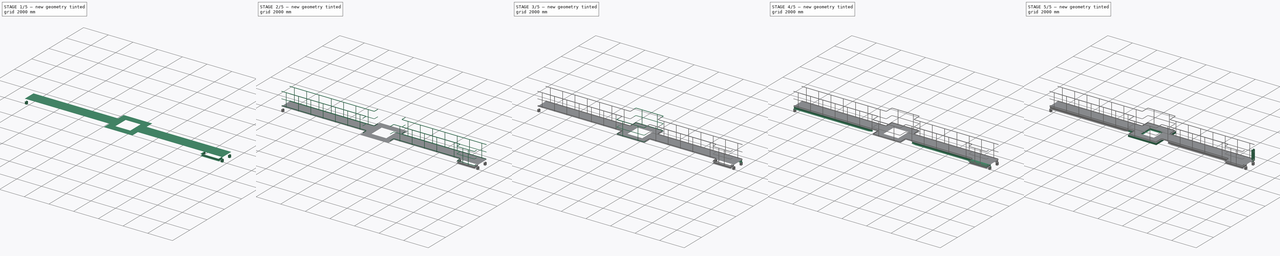
[diagram: build sequence overview — one tinted view per stage of 5, left to right]
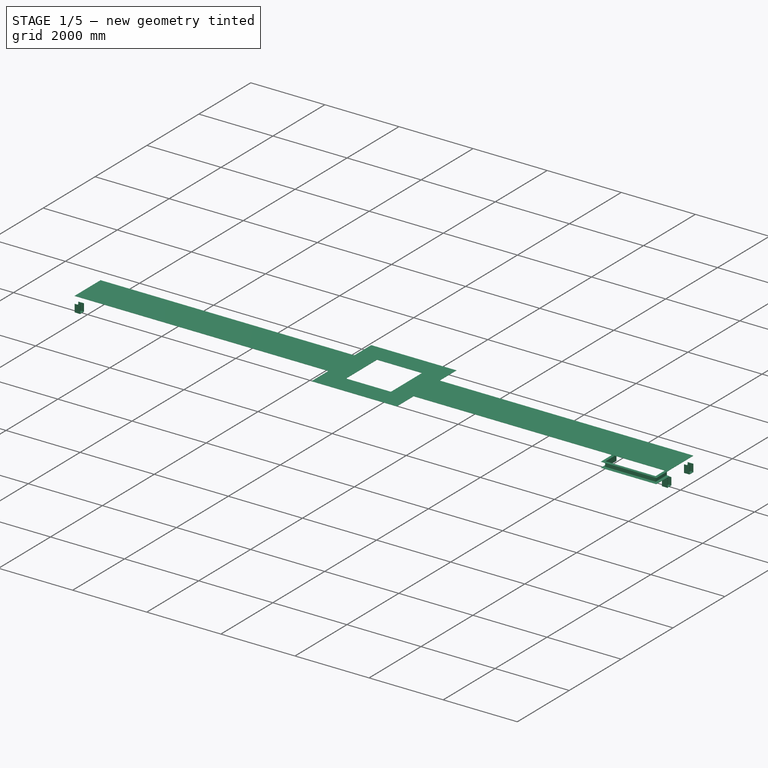
[diagram: stage 1 of 5 — iso view after this stage's code; geometry added in this stage tinted green]
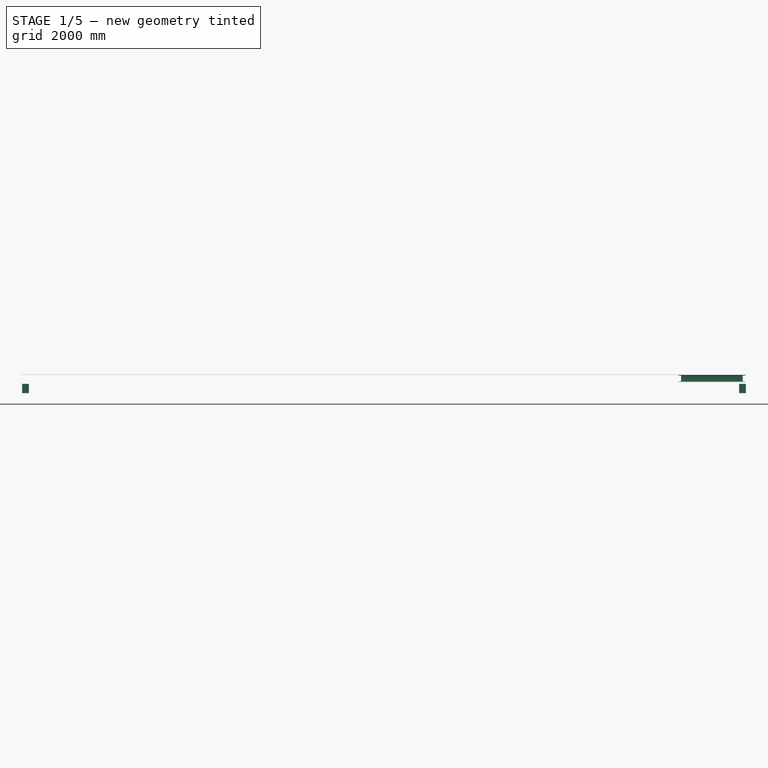
[diagram: stage 1 of 5 — front view after this stage's code; geometry added in this stage tinted green]
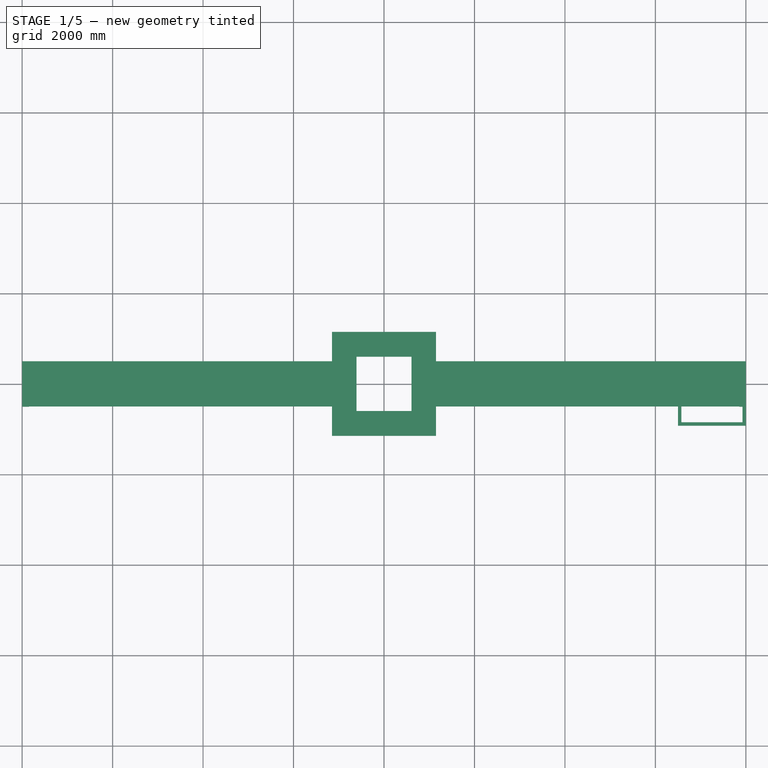
[diagram: stage 1 of 5 — top view after this stage's code; geometry added in this stage tinted green]
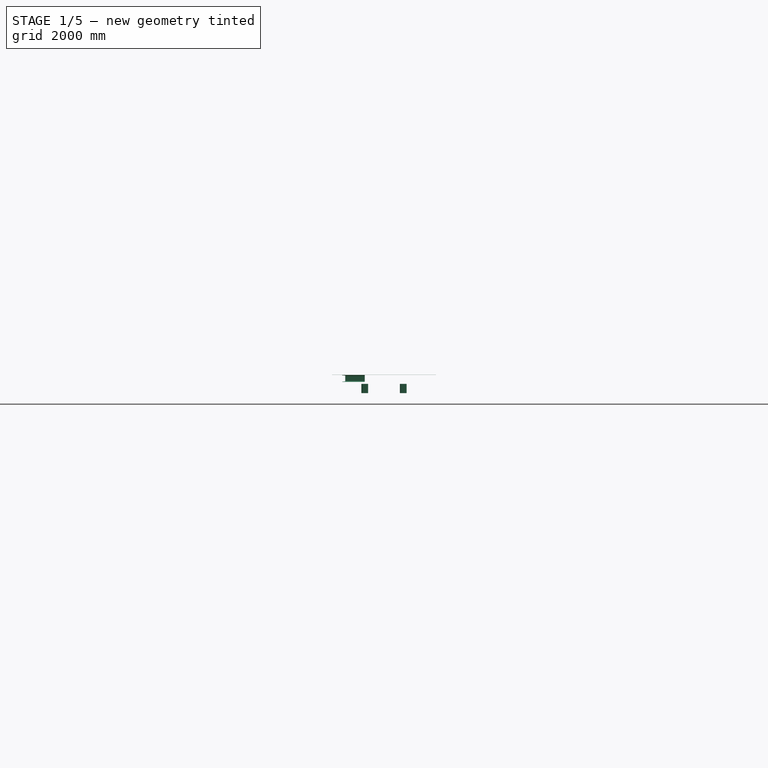
[diagram: stage 1 of 5 — right view after this stage's code; geometry added in this stage tinted green]
FCSTD DOCUMENT  (FreeCAD 1.0R39319 (Git))
Label: bridge_P
License: All rights reserved
LicenseURL: https://en.wikipedia.org/wiki/All_rights_reserved
objects: Part::FeaturePython×25, Sketcher::SketchObject×5, Part::Extrusion×4, Part::Sweep×3, Part::MultiFuse×3, App::Part×3, Part::Compound×2, Part::Loft×1, Part::Mirroring×1, Spreadsheet::Sheet×1, Part::Feature×1
note: 49 computed .brp shape members not serialized (recipe doc carries the construction recipe); baked Part::Feature solids carry a one-line shape summary decoded from their .brp

FEATURE [Sketcher::SketchObject] Sketch002
  ArcFitTolerance = 0
  ExternalGeometry = -> [Sketch001]
  FullyConstrained = false
  MakeInternals = false
  MapMode = 5
  Placement = pos=(0,0,1.342e-13) rot=(0,0,1;0rad)
  expr: Constraints[28] = Spreadsheet.dia / 2 + 250
  sketch-geometry (12):
    g0: LineSegment StartX=0 StartY=1150 StartZ=0 EndX=1150 EndY=1150 EndZ=0
    g1: LineSegment StartX=1150 StartY=1150 StartZ=0 EndX=1150 EndY=500 EndZ=0
    g2: LineSegment StartX=1150 StartY=500 StartZ=0 EndX=8000 EndY=500 EndZ=0
    g3: LineSegment StartX=8000 StartY=-500 StartZ=0 EndX=1150 EndY=-500 EndZ=0
    g4: LineSegment StartX=1150 StartY=-500 StartZ=0 EndX=1150 EndY=-1150 EndZ=0
    g5: LineSegment StartX=1150 StartY=-1150 StartZ=0 EndX=0 EndY=-1150 EndZ=0
    g6: LineSegment StartX=0 StartY=-1150 StartZ=0 EndX=0 EndY=-600 EndZ=0
    g7: LineSegment StartX=0 StartY=600 StartZ=0 EndX=606.738 EndY=600 EndZ=0
    g8: LineSegment StartX=606.738 StartY=600 StartZ=0 EndX=606.738 EndY=-600 EndZ=0
    g9: LineSegment StartX=606.738 StartY=-600 StartZ=0 EndX=0 EndY=-600 EndZ=0
    g10: LineSegment StartX=0 StartY=600 StartZ=0 EndX=0 EndY=1150 EndZ=0
    g11: LineSegment StartX=8000 StartY=-500 StartZ=0 EndX=8000 EndY=500 EndZ=0
  constraints (31):
    c: Horizontal(g0)
    c: Coincident(g0,g1)
    c: Vertical(g1)
    c: Coincident(g1,g2)
    c: Horizontal(g2)
    c: Horizontal(g3)
    c: Coincident(g3,g4)
    c: Coincident(g4,g5)
    c: PointOnObject(g5,g-2)
    c: Horizontal(g5)
    c: Coincident(g5,g6)
    c: Coincident(g10,g0)
    c: Vertical(g6)
    c: Coincident(g-3,g0)
    c: Coincident(g4,g-3)
    c: Vertical(g4)
    c: Horizontal(g7)
    c: Coincident(g7,g8)
    c: Vertical(g8)
    c: Coincident(g8,g9)
    c: Horizontal(g9)
    c: Coincident(g6,g9)
    c: Coincident(g10,g7)
    c: Vertical(g10)
    c: Coincident(g11,g3)
    c: Coincident(g11,g2)
    c: DistanceY(g11,g11) = 1000
    c: Symmetric(g3,g2,g-1)
    c: DistanceX(g-1,g3) = 8000
    c: Symmetric(g6,g7,g-1)
    c: DistanceY(g8,g8) = 1200
FEATURE [Part::Extrusion] Extrude001
  Base = -> Sketch002
  Dir = (0,0,1)
  DirMode = 2
  FaceMakerClass = Part::FaceMakerBullseye
  FaceMakerMode = 3
  LengthFwd = 4.5
  LengthRev = 0
  Solid = true
  Symmetric = false
FEATURE [Part::FeaturePython] BasePlate  # WARN: FeaturePython — macro-defined, semantics opaque (R4)
  B = 150
  D = 20
  H = 150
  b1 = 30
  h1 = 45
  sface = 0
FEATURE [Part::Extrusion] Extrude002
  Base = -> BasePlate
  Dir = (0,0,1)
  DirMode = 2
  FaceMakerClass = Part::FaceMakerBullseye
  FaceMakerMode = 3
  LengthFwd = 10
  LengthRev = 0
  Solid = true
  Symmetric = false
FEATURE [Part::FeaturePython] H_Shape  # WARN: FeaturePython — macro-defined, semantics opaque (R4)
  B = 150
  H = 150
  L = 206
  Placement = pos=(0,0,0) rot=(0.57735,0.57735,0.57735;2.0944rad)
  Solid = true
  g0 = 7.85
  mass = 6.49082
  size = 2
  standard = SS_Wide
  expr: L = Spreadsheet.hight - 194
FEATURE [Part::MultiFuse] Fusion007  label="PostH"
  Placement = pos=(-7925,-425,-400) rot=(0,0,1;1.5708rad)
  Shapes = -> [Extrude002,H_Shape]
  expr: .Placement.Base.x = -Spreadsheet.dia / 2 - 175
  expr: .Placement.Base.z = -Spreadsheet.hight
FEATURE [App::Part] Part003  label="handrail"
  Group = -> [Channel,Channel001,Channel002,Corner,Channel003,Corner001,Corner002,Corner003,Corner004]
  Origin = -> Origin003
FEATURE [Part::Sweep] Sweep002
  Frenet = false
  Sections = -> [ChannelSteel001]
  Solid = true
  Spine = -> Sketch003 [Edge3,Edge2,Edge1]
  Transition = 1
FEATURE [Part::FeaturePython] Array003  # Draft array (typed FeaturePython)
  AlwaysSyncPlacement = false
  Angle = 360
  ArrayType = 0
  Axis = (0,0,1)
  Base = -> Fusion007
  Center = (0,0,0)
  Count = 4
  ExpandArray = false
  Fuse = true
  IntervalAxis = (0,0,0)
  IntervalX = (15850,0,0)
  IntervalY = (0,850,0)
  IntervalZ = (0,0,100)
  NumberCircles = 3
  NumberPolar = 5
  NumberX = 2
  NumberY = 2
  NumberZ = 1
  PlacementList = 4 placements: [(-7925,-425,-400),(-7925,425,-400),(7925,-425,-400),(7925,425,-400)]
  RadialDistance = 50
  ScaleList = (4) [(1,1,1),(1,1,1),(1,1,1),(1,1,1)]
  Symmetry = 1
  TangentialDistance = 25
  expr: .IntervalX.x = Spreadsheet.dia + 350
FEATURE [Part::FeaturePython] Array004  # Draft array (typed FeaturePython)
  AlwaysSyncPlacement = false
  Angle = 360
  ArrayType = 1
  Axis = (0,0,1)
  Base = -> Extrude001
  Center = (0,0,750)
  Count = 2
  ExpandArray = false
  Fuse = true
  IntervalAxis = (0,0,0)
  IntervalX = (50,0,0)
  IntervalY = (0,50,0)
  IntervalZ = (0,0,50)
  NumberCircles = 3
  NumberPolar = 2
  NumberX = 2
  NumberY = 2
  NumberZ = 1
  PlacementList = 2 placements: [(0,0,0),(0,0,0)]
  RadialDistance = 50
  ScaleList = (2) [(1,1,1),(1,1,1)]
  Symmetry = 1
  TangentialDistance = 25
FEATURE [App::Part] Part  label="bridge001"
  Group = -> [Sketch002,HShapeSteel,HShapeSteel001,ChannelSteel,AngleSteel,Mirror,Compound,Compound001,Array,Extrude,Extrude001,HShapeSteel002,Clone,Clone001,HShapeSteel003,HShapeSteel004,Loft,Sweep001,Sweep,Fusion002,Fusion,Sketch,Sketch001,Extrude002,BasePlate,H_Shape,Fusion007,Sketch003,ChannelSteel001,Sweep002,Sketch004,Extrude003,Array001,Array003,Array004]
  Origin = -> Origin
FEATURE [App::Part] Part002  label="bridge"
  Group = -> [Part,Spreadsheet,Part__Feature,Part003]
  Origin = -> Origin002
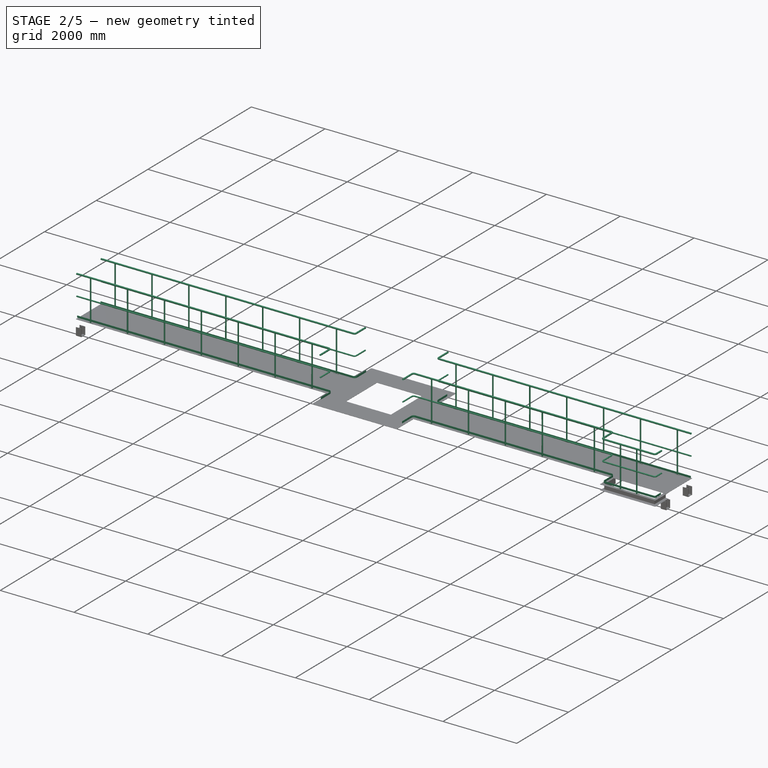
[diagram: stage 2 of 5 — iso view after this stage's code; geometry added in this stage tinted green]
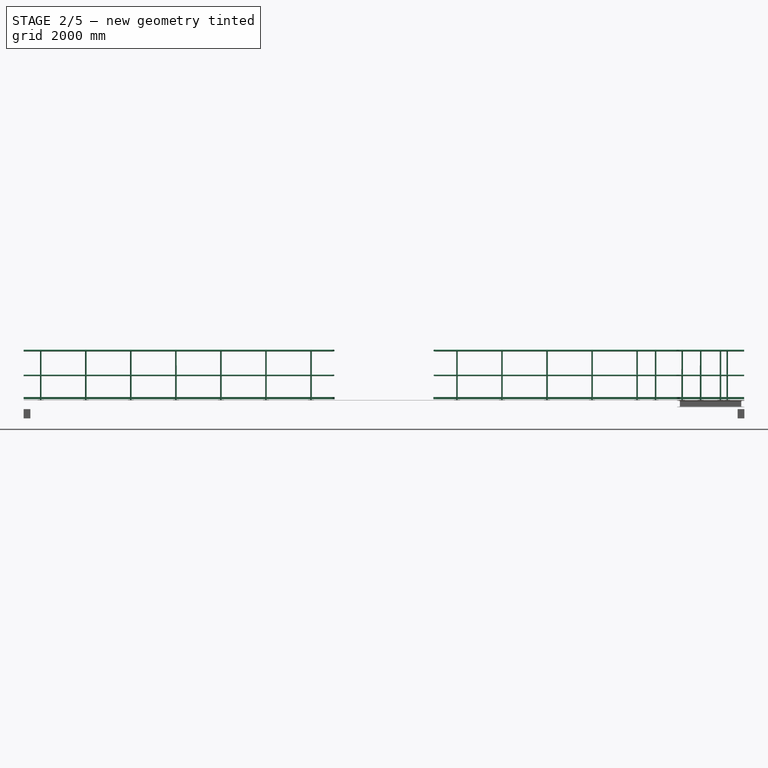
[diagram: stage 2 of 5 — front view after this stage's code; geometry added in this stage tinted green]
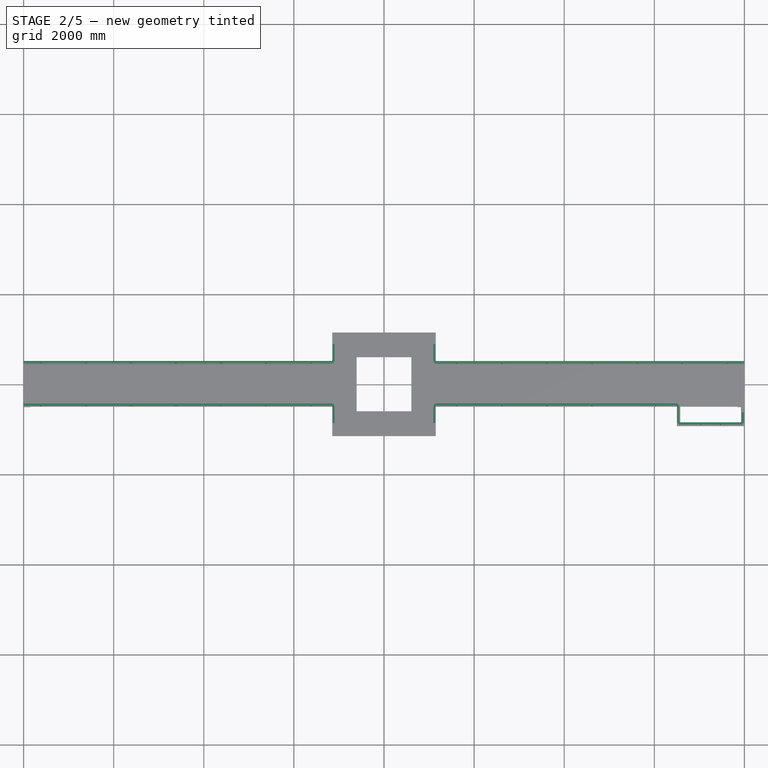
[diagram: stage 2 of 5 — top view after this stage's code; geometry added in this stage tinted green]
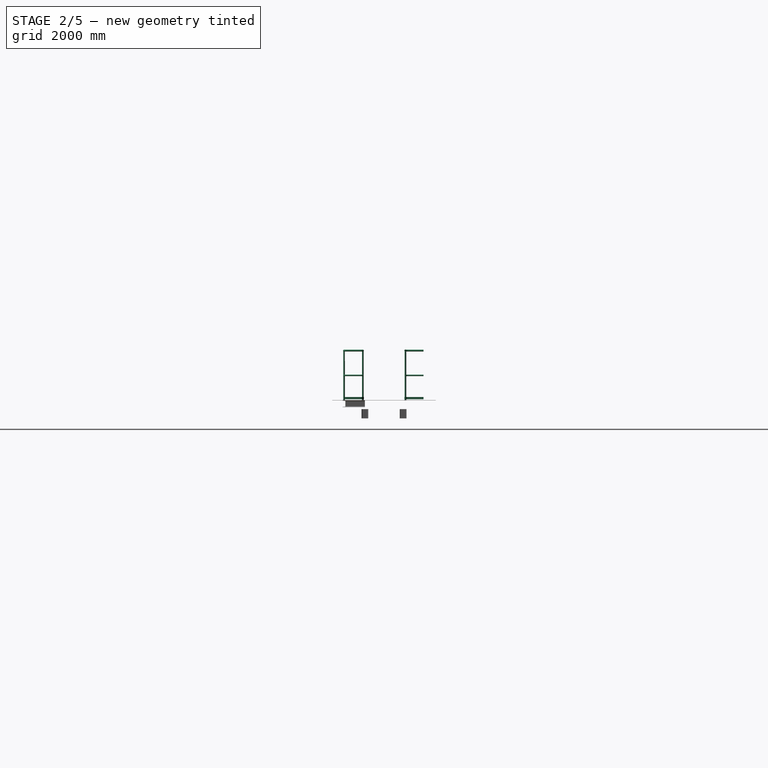
[diagram: stage 2 of 5 — right view after this stage's code; geometry added in this stage tinted green]
FEATURE [Part::FeaturePython] Corner  # WARN: FeaturePython — macro-defined, semantics opaque (R4)
  Placement = pos=(1119.4,-870,5) rot=(0,0,-1;4.71239rad)
  Reverse = false
  g0 = 7.85
  h = 1100
  k = -90
  l1 = 400
  l2 = 4360
  mass = 50.436
  p = 1000
  spec = 0
  type = 2
  expr: l2 = Spreadsheet.dia / 2 - 3390
FEATURE [Part::FeaturePython] Channel003  # WARN: FeaturePython — macro-defined, semantics opaque (R4)
  Placement = pos=(7250,-886.772,5) rot=(0,0,1;0rad)
  Reverse = false
  g0 = 7.85
  h = 1100
  k = 90
  l1 = 720
  l2 = 245
  mass = 21.0928
  p = 1000
  spec = 0
  type = 6
  expr: .Placement.Base.x = Spreadsheet.dia / 2 - 500
FEATURE [Part::FeaturePython] Corner001  # WARN: FeaturePython — macro-defined, semantics opaque (R4)
  Placement = pos=(5480,-469.271,5) rot=(0,0,1;0rad)
  Reverse = false
  g0 = 7.85
  h = 1100
  k = -90
  l1 = 1050
  l2 = 165
  mass = 12.7366
  p = 1000
  spec = 0
  type = 2
  expr: .Placement.Base.x = Spreadsheet.dia / 2 - 2270
FEATURE [Part::FeaturePython] Corner002  # WARN: FeaturePython — macro-defined, semantics opaque (R4)
  Placement = pos=(1119.4,874.21,5) rot=(0,0,-1;1.5708rad)
  Reverse = true
  g0 = 7.85
  h = 1100
  k = 90
  l1 = 400
  l2 = 6875
  mass = 79.7206
  p = 1000
  spec = 0
  type = 2
  expr: l2 = Spreadsheet.dia / 2 - 875
FEATURE [Part::FeaturePython] Corner003  # WARN: FeaturePython — macro-defined, semantics opaque (R4)
  Placement = pos=(-1118.86,-871.912,5) rot=(0,0,-1;4.71239rad)
  Reverse = true
  g0 = 7.85
  h = 1100
  k = 90
  l1 = 400
  l2 = 6880
  mass = 79.7615
  p = 1000
  spec = 0
  type = 2
  expr: l2 = Spreadsheet.dia / 2 - 870
FEATURE [Part::FeaturePython] Corner004  # WARN: FeaturePython — macro-defined, semantics opaque (R4)
  Placement = pos=(-1120.15,876.348,5) rot=(0,0,-1;1.5708rad)
  Reverse = false
  g0 = 7.85
  h = 1100
  k = -90
  l1 = 400
  l2 = 6880
  mass = 79.7615
  p = 1000
  spec = 0
  type = 2
  expr: l2 = Spreadsheet.dia / 2 - 870
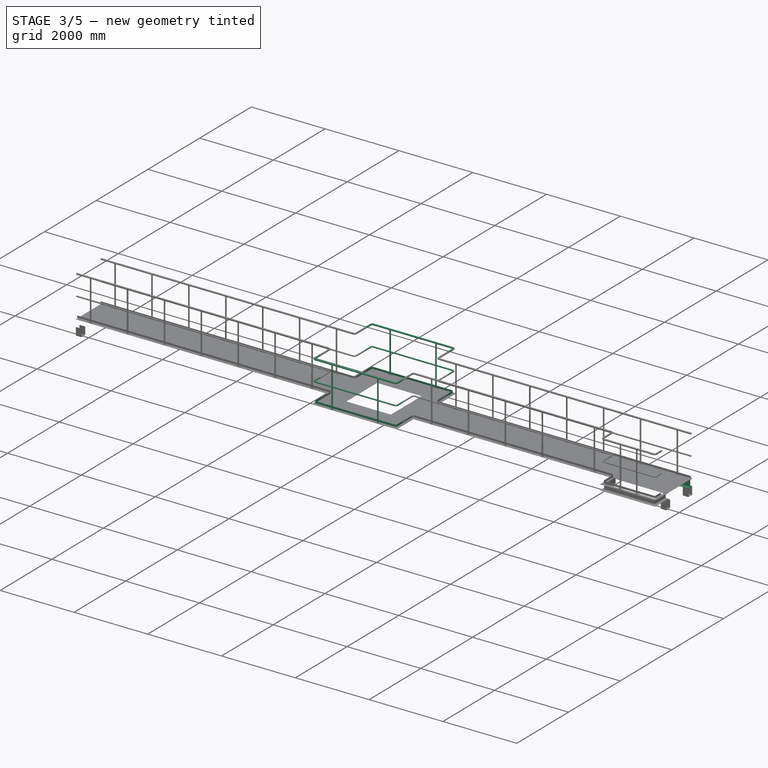
[diagram: stage 3 of 5 — iso view after this stage's code; geometry added in this stage tinted green]
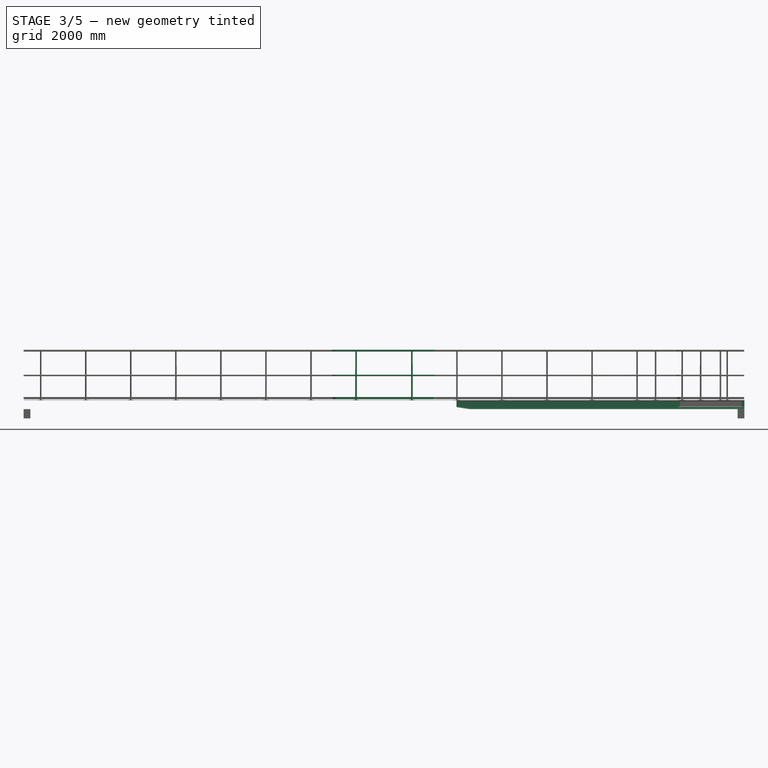
[diagram: stage 3 of 5 — front view after this stage's code; geometry added in this stage tinted green]
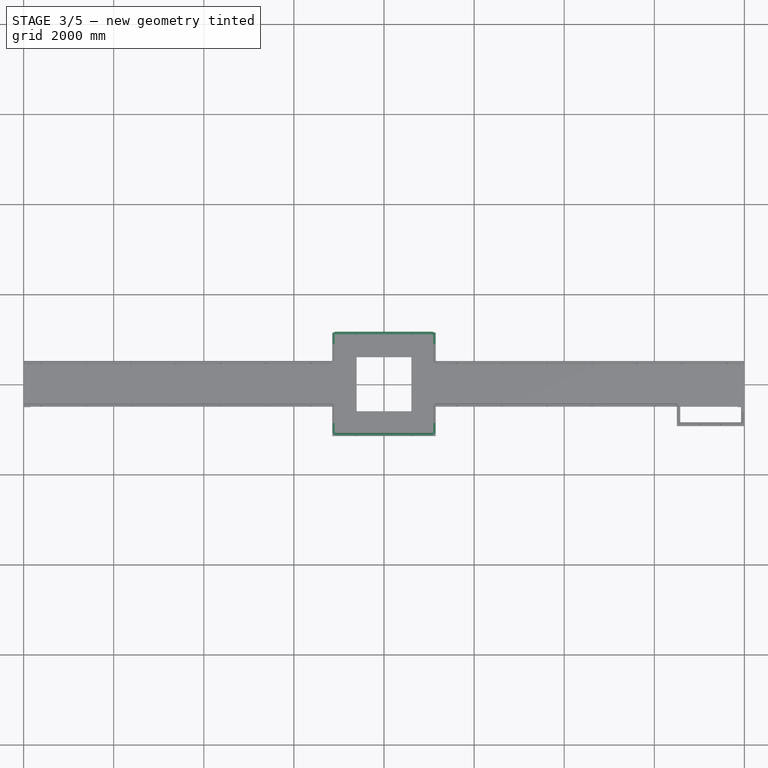
[diagram: stage 3 of 5 — top view after this stage's code; geometry added in this stage tinted green]
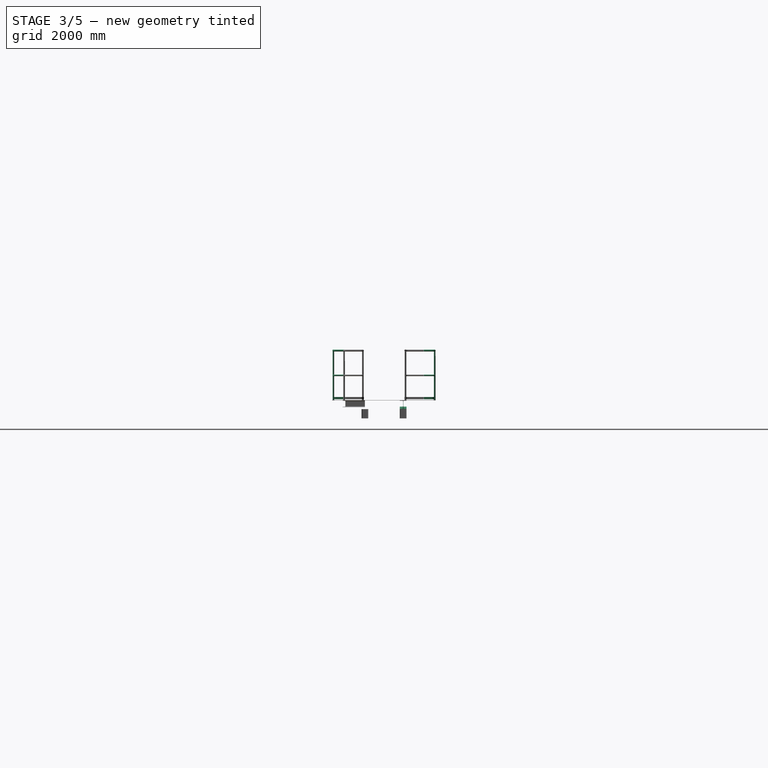
[diagram: stage 3 of 5 — right view after this stage's code; geometry added in this stage tinted green]
FEATURE [Part::FeaturePython] HShapeSteel002  label="HShapeSteel003"  # WARN: FeaturePython — macro-defined, semantics opaque (R4)
  B = 150
  H = 150
  L = 1000
  Placement = pos=(1607.98,-500,-150) rot=(0,0,1;1.5708rad)
  Solid = false
  g0 = 7.85
  mass = 0
  size = 2
  standard = SS_Wide
  t1 = 7
  t2 = 10
FEATURE [Part::FeaturePython] HShapeSteel003  label="HShapeSteel004"  # WARN: FeaturePython — macro-defined, semantics opaque (R4)
  B = 150
  H = 194
  L = 1000
  Placement = pos=(1900,-500,-194) rot=(0,0,1;1.5708rad)
  Solid = false
  g0 = 7.85
  mass = 0
  size = 1
  standard = SS_Medium
  t1 = 6
  t2 = 9
FEATURE [Part::Loft] Loft
  Closed = false
  MaxDegree = 5
  Ruled = false
  Sections = -> [HShapeSteel002,HShapeSteel003]
  Solid = true
FEATURE [Part::Extrusion] Extrude
  Base = -> HShapeSteel003
  Dir = (-1,-2e-16,0)
  DirMode = 2
  FaceMakerClass = Part::FaceMakerBullseye
  FaceMakerMode = 3
  LengthFwd = 6100
  LengthRev = 0
  Reversed = true
  Solid = true
  Symmetric = false
  expr: LengthFwd = Spreadsheet.L0
FEATURE [Part::MultiFuse] Fusion002
  Shapes = -> [Extrude,Loft]
FEATURE [Part::FeaturePython] Clone001  label="Fusion003"  # Draft clone (typed FeaturePython)
  AttacherType = Attacher::AttachEngine3D
  Fuse = false
  Objects = -> [Fusion002]
  Placement = pos=(-9.09e-13,850,6.6e-14) rot=(0,0,1;0rad)
  Scale = (1,1,1)
FEATURE [Part::Feature] Part__Feature  label="cover"
  shape: bbox 1150 x 1150 x 750 mm, 40 faces (baked)
FEATURE [Part::FeaturePython] Channel  # WARN: FeaturePython — macro-defined, semantics opaque (R4)
  Placement = pos=(0,-1123.5,5) rot=(0,0,1;0rad)
  Reverse = false
  g0 = 7.85
  h = 1100
  k = 90
  l1 = 1120
  l2 = 245
  mass = 27.6281
  p = 1000
  spec = 0
  type = 6
FEATURE [Part::FeaturePython] Channel001  # WARN: FeaturePython — macro-defined, semantics opaque (R4)
  Placement = pos=(0,1125,5) rot=(0,0,1;0rad)
  Reverse = true
  g0 = 7.85
  h = 1100
  k = -90
  l1 = 1120
  l2 = 245
  mass = 27.628
  p = 1000
  spec = 0
  type = 6
FEATURE [Part::FeaturePython] Channel002  # WARN: FeaturePython — macro-defined, semantics opaque (R4)
  Placement = pos=(0,1125,5) rot=(0,0,1;0rad)
  Reverse = true
  g0 = 7.85
  h = 1100
  k = -90
  l1 = 1120
  l2 = 245
  mass = 27.628
  p = 1000
  spec = 0
  type = 6
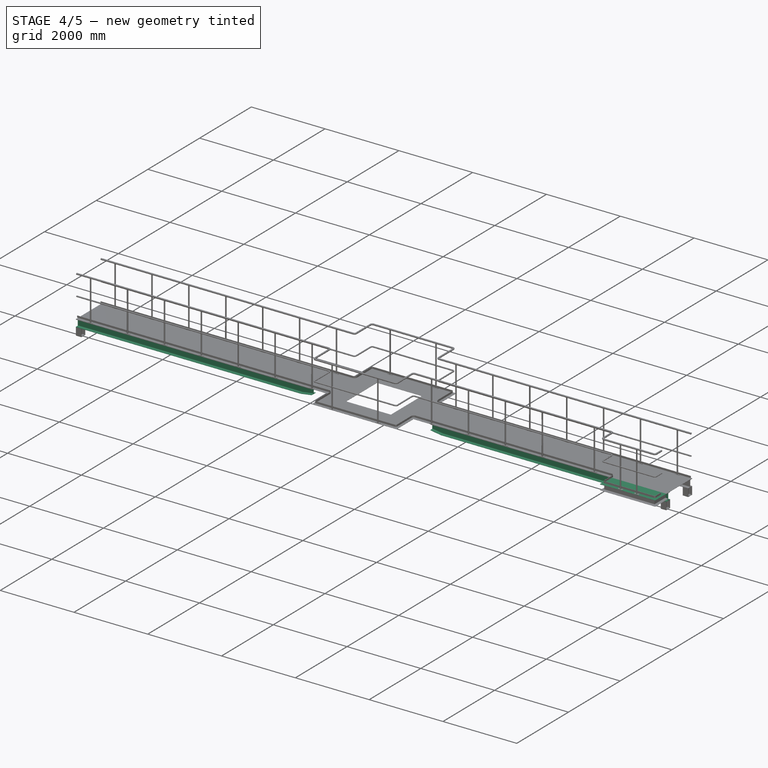
[diagram: stage 4 of 5 — iso view after this stage's code; geometry added in this stage tinted green]
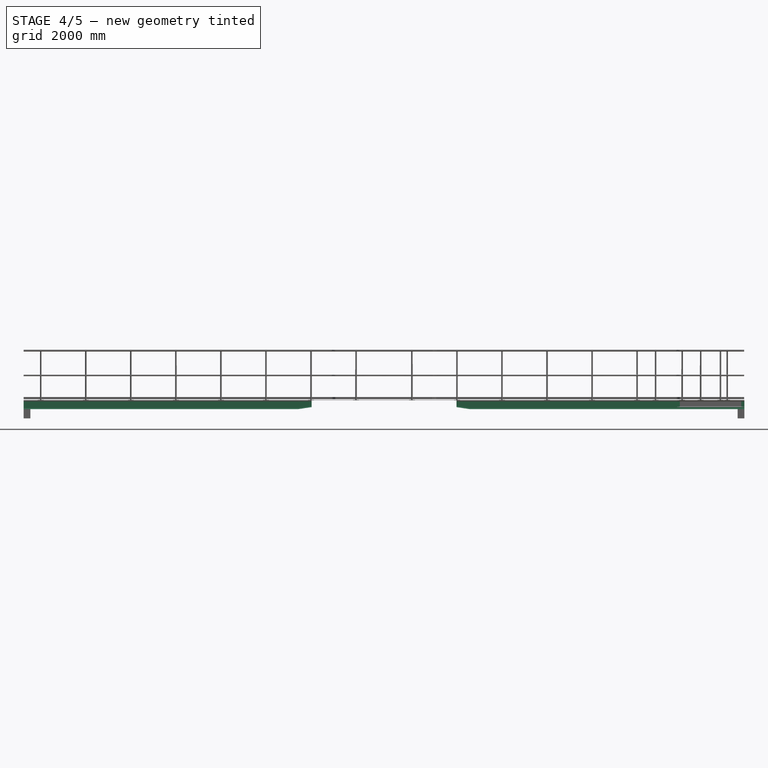
[diagram: stage 4 of 5 — front view after this stage's code; geometry added in this stage tinted green]
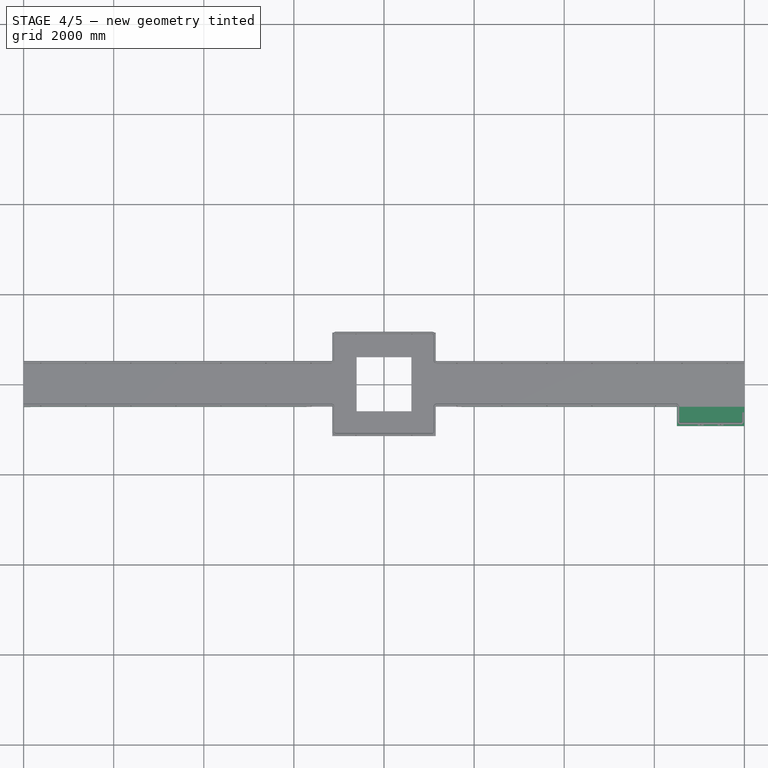
[diagram: stage 4 of 5 — top view after this stage's code; geometry added in this stage tinted green]
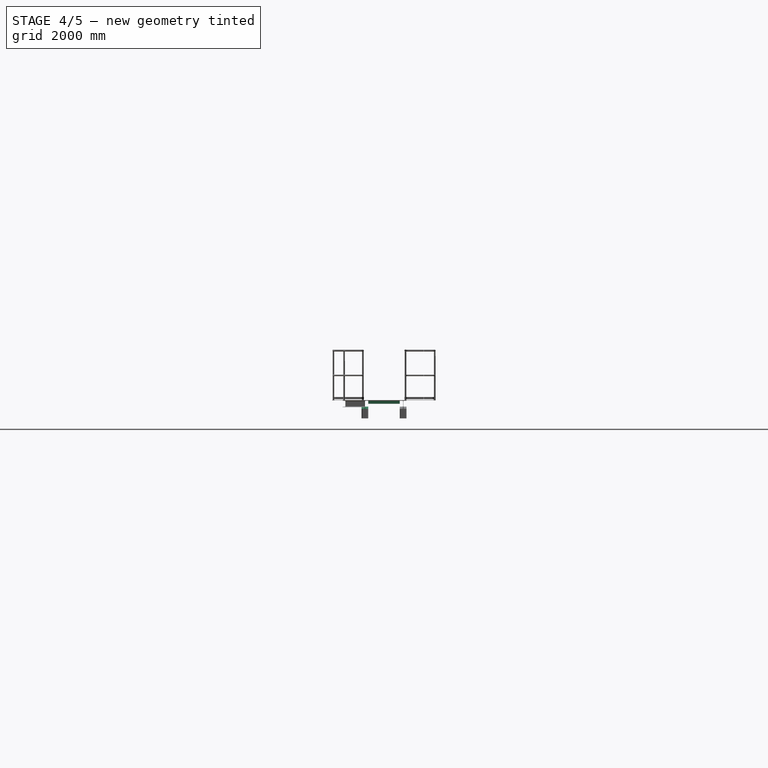
[diagram: stage 4 of 5 — right view after this stage's code; geometry added in this stage tinted green]
FEATURE [Part::FeaturePython] AngleSteel  # WARN: FeaturePython — macro-defined, semantics opaque (R4)
  A = 75
  B = 75
  L = 700
  Placement = pos=(1800,350,-37.5) rot=(1,0,0;1.5708rad)
  Solid = true
  g0 = 7.85
  mass = 4.79514
  size = 10
  standard = SS_Equal
  t = 6
FEATURE [Part::FeaturePython] Array  # Draft array (typed FeaturePython)
  AlwaysSyncPlacement = false
  Angle = 360
  ArrayType = 0
  Axis = (0,0,1)
  Base = -> AngleSteel
  Center = (0,0,0)
  Count = 9
  ExpandArray = false
  Fuse = false
  IntervalAxis = (0,0,0)
  IntervalX = (700,0,0)
  IntervalY = (0,100,0)
  IntervalZ = (0,0,100)
  NumberCircles = 3
  NumberPolar = 5
  NumberX = 9
  NumberY = 1
  NumberZ = 1
  PlacementList = 9 placements: arithmetic series from (1800,350,-37.5) step (700,0,0) to (7400,350,-37.5)
  RadialDistance = 50
  ScaleList = (9) [(1,1,1),(1,1,1),(1,1,1),(1,1,1),(1,1,1),(1,1,1),(1,1,1),(1,1,1),(1,1,1)]
  Symmetry = 1
  TangentialDistance = 25
  expr: NumberX = Spreadsheet.n
FEATURE [Part::Compound] Compound
  Links = -> [Fusion002,Clone001]
FEATURE [Part::Compound] Compound001
  Links = -> [Compound,Array]
FEATURE [Sketcher::SketchObject] Sketch003
  ArcFitTolerance = 0
  FullyConstrained = false
  MakeInternals = false
  MapMode = 5
  Placement = pos=(0,0,1.342e-13) rot=(0,0,1;0rad)
  expr: Constraints[6] = Spreadsheet.dia / 2 + 250
  sketch-geometry (3):
    g0: LineSegment StartX=8000 StartY=-425 StartZ=0 EndX=8000 EndY=-925 EndZ=0
    g1: LineSegment StartX=8000 StartY=-925 StartZ=0 EndX=6500 EndY=-925 EndZ=0
    g2: LineSegment StartX=6500 StartY=-925 StartZ=0 EndX=6500 EndY=-428 EndZ=0
  constraints (9):
    c: Vertical(g0)
    c: Coincident(g0,g1)
    c: Horizontal(g1)
    c: Coincident(g1,g2)
    c: Vertical(g2)
    c: DistanceX(g1,g1) = 1500
    c: DistanceX(g-1,g0) = 8000
    c: Distance(g0,g-1) = 425
    c: DistanceY(g0,g0) = 500
FEATURE [Part::FeaturePython] ChannelSteel001  # WARN: FeaturePython — macro-defined, semantics opaque (R4)
  B = 75
  H = 150
  L = 1000
  Placement = pos=(6575,-671.206,-150) rot=(0,0,1;3.14159rad)
  Solid = false
  g0 = 7.85
  mass = 0
  size = 3
  standard = SS
  t1 = 6.5
  t2 = 10
  expr: .Placement.Base.x = Spreadsheet.dia / 2 - 1175
FEATURE [Part::FeaturePython] Array001  # Draft array (typed FeaturePython)
  AlwaysSyncPlacement = false
  Angle = 360
  ArrayType = 1
  Axis = (0,0,1)
  Base = -> Compound001
  Center = (0,0,0)
  Count = 2
  ExpandArray = false
  Fuse = true
  IntervalAxis = (0,0,0)
  IntervalX = (50,0,0)
  IntervalY = (0,50,0)
  IntervalZ = (0,0,50)
  NumberCircles = 3
  NumberPolar = 2
  NumberX = 2
  NumberY = 2
  NumberZ = 1
  PlacementList = 2 placements: [(0,0,0),(0,0,0)]
  RadialDistance = 50
  ScaleList = (2) [(1,1,1),(1,1,1)]
  Symmetry = 1
  TangentialDistance = 25
FEATURE [Sketcher::SketchObject] Sketch004
  ArcFitTolerance = 0
  AttachmentSupport = -> [Sweep002]
  FullyConstrained = true
  MakeInternals = false
  MapMode = 5
  Placement = pos=(0,0,-1.133e-13) rot=(0,0,1;0rad)
  expr: Constraints[9] = Spreadsheet.dia / 2 + 250
  sketch-geometry (4):
    g0: LineSegment StartX=6500 StartY=-925 StartZ=0 EndX=8000 EndY=-925 EndZ=0
    g1: LineSegment StartX=8000 StartY=-500 StartZ=0 EndX=6500 EndY=-500 EndZ=0
    g2: LineSegment StartX=6500 StartY=-500 StartZ=0 EndX=6500 EndY=-925 EndZ=0
    g3: LineSegment StartX=8000 StartY=-925 StartZ=0 EndX=8000 EndY=-500 EndZ=0
  constraints (12):
    c: Coincident(g1,g2)
    c: Coincident(g2,g0)
    c: Horizontal(g0)
    c: Horizontal(g1)
    c: Vertical(g2)
    c: Coincident(g3,g0)
    c: Coincident(g3,g1)
    c: Vertical(g3)
    c: Distance(g1,g-1) = 500
    c: DistanceX(g-1,g0) = 8000
    c: DistanceX(g0,g0) = 1500
    c: DistanceY(g3,g3) = 425
FEATURE [Part::Extrusion] Extrude003
  Base = -> Sketch004
  Dir = (0,0,1)
  DirMode = 2
  FaceMakerClass = Part::FaceMakerBullseye
  FaceMakerMode = 3
  LengthFwd = 4.5
  LengthRev = 0
  Solid = true
  Symmetric = false
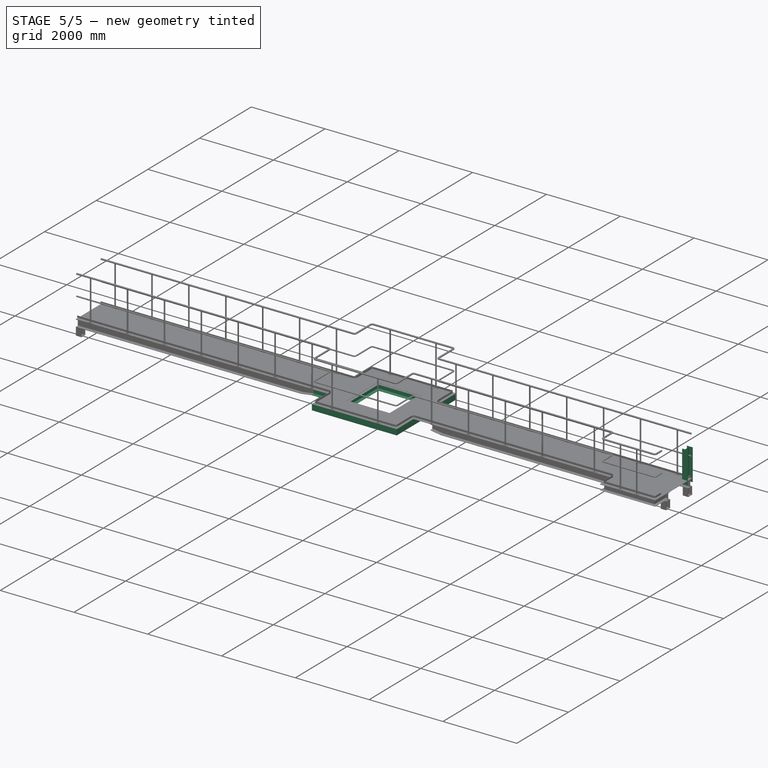
[diagram: stage 5 of 5 — iso view after this stage's code; geometry added in this stage tinted green]
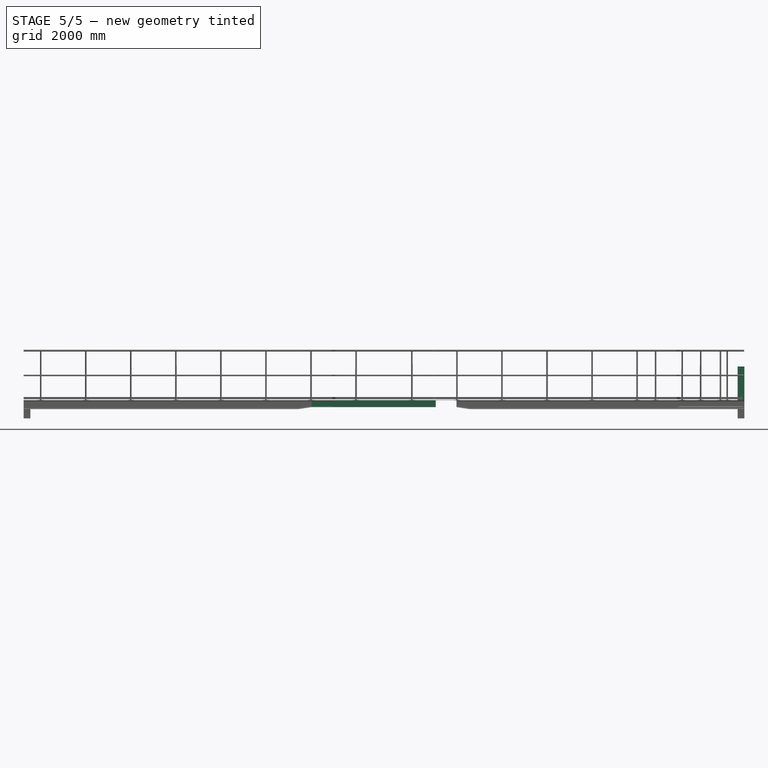
[diagram: stage 5 of 5 — front view after this stage's code; geometry added in this stage tinted green]
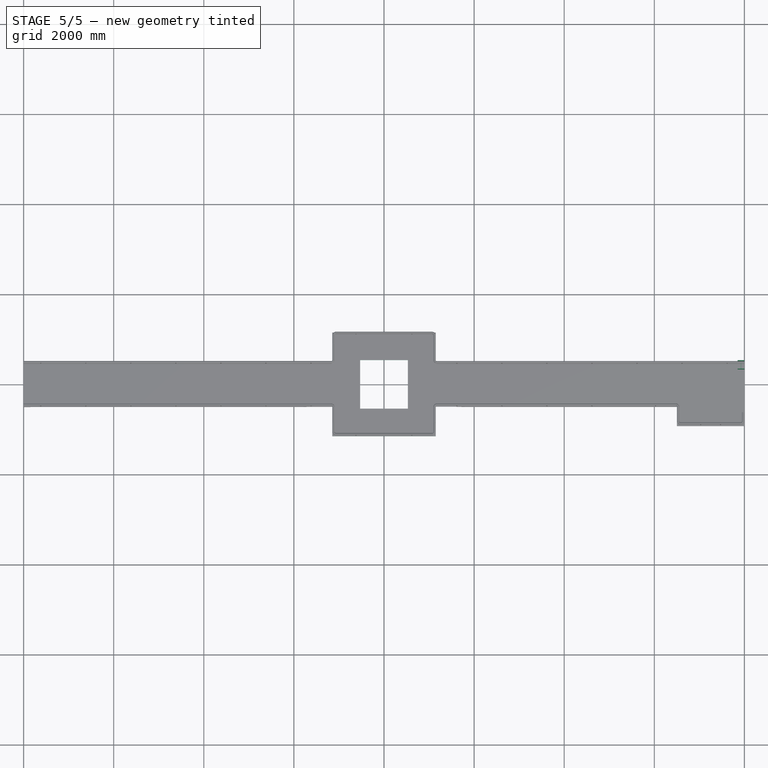
[diagram: stage 5 of 5 — top view after this stage's code; geometry added in this stage tinted green]
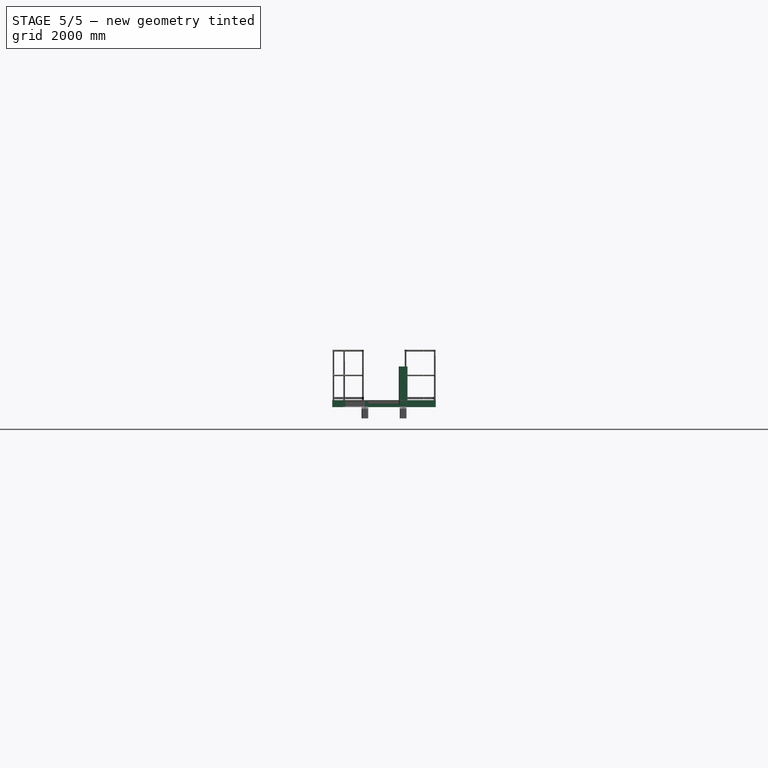
[diagram: stage 5 of 5 — right view after this stage's code; geometry added in this stage tinted green]
FEATURE [Sketcher::SketchObject] Sketch
  ArcFitTolerance = 0
  FullyConstrained = true
  MakeInternals = false
  sketch-geometry (5):
    g0: LineSegment StartX=-640 StartY=-650 StartZ=0 EndX=-640 EndY=650 EndZ=0
    g1: LineSegment StartX=-640 StartY=650 StartZ=0 EndX=640 EndY=650 EndZ=0
    g2: LineSegment StartX=640 StartY=650 StartZ=0 EndX=640 EndY=-650 EndZ=0
    g3: LineSegment StartX=640 StartY=-650 StartZ=0 EndX=-640 EndY=-650 EndZ=0
    g4: GeomPoint [constr] X=0 Y=0 Z=0
  constraints (12):
    c: Coincident(g0,g1)
    c: Coincident(g1,g2)
    c: Coincident(g2,g3)
    c: Coincident(g3,g0)
    c: Horizontal(g1)
    c: Horizontal(g3)
    c: Vertical(g0)
    c: Vertical(g2)
    c: Symmetric(g1,g0,g4)
    c: Coincident(g4,g-1)
    c: DistanceY(g2,g2) = 1300
    c: DistanceX(g1,g1) = 1280
FEATURE [Part::FeaturePython] HShapeSteel  # WARN: FeaturePython — macro-defined, semantics opaque (R4)
  B = 150
  H = 150
  L = 1000
  Placement = pos=(530,0,-150) rot=(0,0,1;0rad)
  Solid = false
  g0 = 7.85
  mass = 0
  size = 2
  standard = SS_Wide
  t1 = 7
  t2 = 10
FEATURE [Part::Sweep] Sweep
  Frenet = true
  Sections = -> [HShapeSteel]
  Solid = true
  Spine = -> Sketch [Edge3,Edge2,Edge1,Edge4]
  Transition = 1
FEATURE [Part::FeaturePython] HShapeSteel001  # WARN: FeaturePython — macro-defined, semantics opaque (R4)
  B = 150
  H = 150
  L = 1000
  Placement = pos=(607.98,425,-75) rot=(0.57735,0.57735,0.57735;2.0944rad)
  Solid = true
  g0 = 7.85
  mass = 31.5089
  size = 2
  standard = SS_Wide
  t1 = 7
  t2 = 10
FEATURE [Part::FeaturePython] Clone  label="HShapeSteel002"  # Draft clone (typed FeaturePython)
  AttacherType = Attacher::AttachEngine3D
  Fuse = false
  Objects = -> [HShapeSteel001]
  Placement = pos=(607.98,-425,-75) rot=(0.57735,0.57735,0.57735;2.0944rad)
  Scale = (1,1,1)
FEATURE [Part::MultiFuse] Fusion
  Shapes = -> [HShapeSteel001,Clone]
FEATURE [Part::Mirroring] Mirror  label="Fusion (mirrored)"
  Base = (0,0,0)
  Normal = (1,0,0)
  Source = -> Fusion
FEATURE [Spreadsheet::Sheet] Spreadsheet  label="Spreadsheet_bridge"
  cells = A2='tankdia   dia; B2(dia)=15500; A3='L0; B3(L0)==dia / 2 - 1650; A4='no of bram n; B4(n)=9; A5='hight; B5(hight)=400
FEATURE [Sketcher::SketchObject] Sketch001
  ArcFitTolerance = 0
  FullyConstrained = true
  MakeInternals = false
  sketch-geometry (4):
    g0: LineSegment StartX=-1150 StartY=-1150 StartZ=0 EndX=-1150 EndY=1150 EndZ=0
    g1: LineSegment StartX=-1150 StartY=1150 StartZ=0 EndX=1150 EndY=1150 EndZ=0
    g2: LineSegment StartX=1150 StartY=1150 StartZ=0 EndX=1150 EndY=-1150 EndZ=0
    g3: LineSegment StartX=-1150 StartY=-1150 StartZ=0 EndX=1150 EndY=-1150 EndZ=0
  constraints (12):
    c: Vertical(g0)
    c: Coincident(g0,g1)
    c: Horizontal(g1)
    c: Coincident(g1,g2)
    c: Vertical(g2)
    c: DistanceX(g1,g1) = 2300
    c: DistanceX(g-2,g1) = 1150
    c: Coincident(g3,g0)
    c: Coincident(g3,g2)
    c: Horizontal(g3)
    c: DistanceY(g2,g2) = 2300
    c: DistanceY(g-1,g1) = 1150
FEATURE [Part::FeaturePython] ChannelSteel  # WARN: FeaturePython — macro-defined, semantics opaque (R4)
  B = 75
  H = 150
  L = 1000
  Placement = pos=(-1150,855.871,-150) rot=(0,0,1;0rad)
  Solid = false
  g0 = 7.85
  mass = 0
  size = 3
  standard = SS
  t1 = 6.5
  t2 = 10
FEATURE [Part::Sweep] Sweep001
  Frenet = true
  Sections = -> [ChannelSteel]
  Solid = true
  Spine = -> Sketch001 [Edge2,Edge3,Edge4,Edge1]
  Transition = 1
FEATURE [Part::FeaturePython] HShapeSteel004  label="HShapeSteel005"  # WARN: FeaturePython — macro-defined, semantics opaque (R4)
  B = 150
  H = 194
  L = 850
  Placement = pos=(7925,425,-97) rot=(1,0,0;1.5708rad)
  Solid = true
  g0 = 7.85
  mass = 26.0299
  size = 1
  standard = SS_Medium
  t1 = 6
  t2 = 9
  expr: .Placement.Base.x = Spreadsheet.dia / 2 + 175
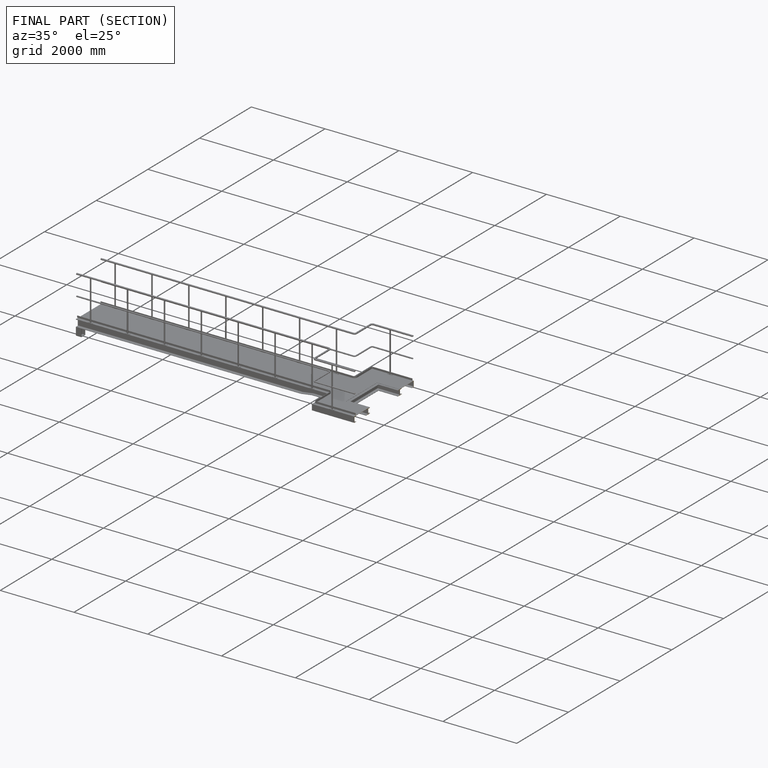
[diagram: finished part — half-section view (interior)]
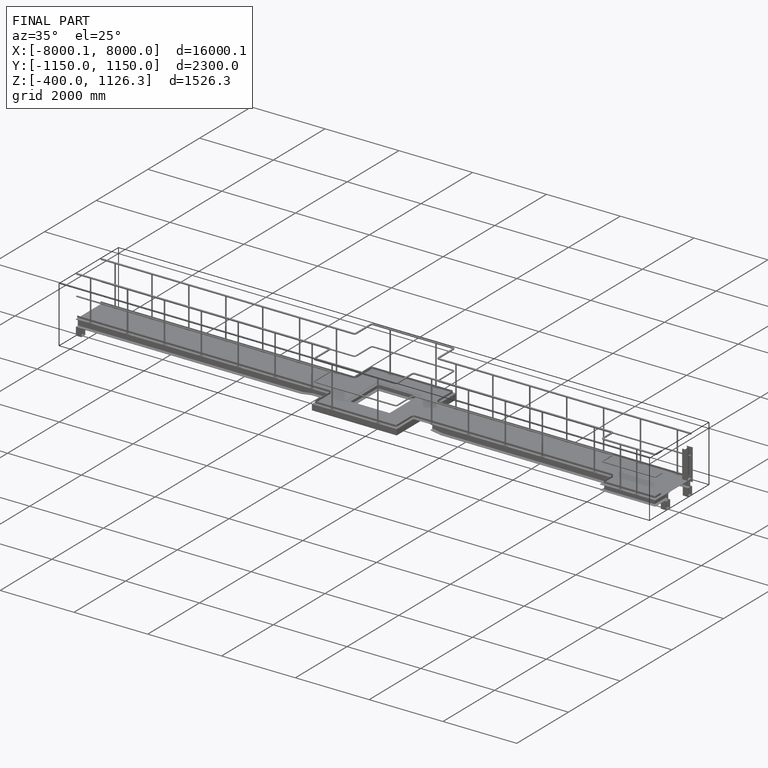
[diagram: finished part — iso view with bounding-box wireframe]
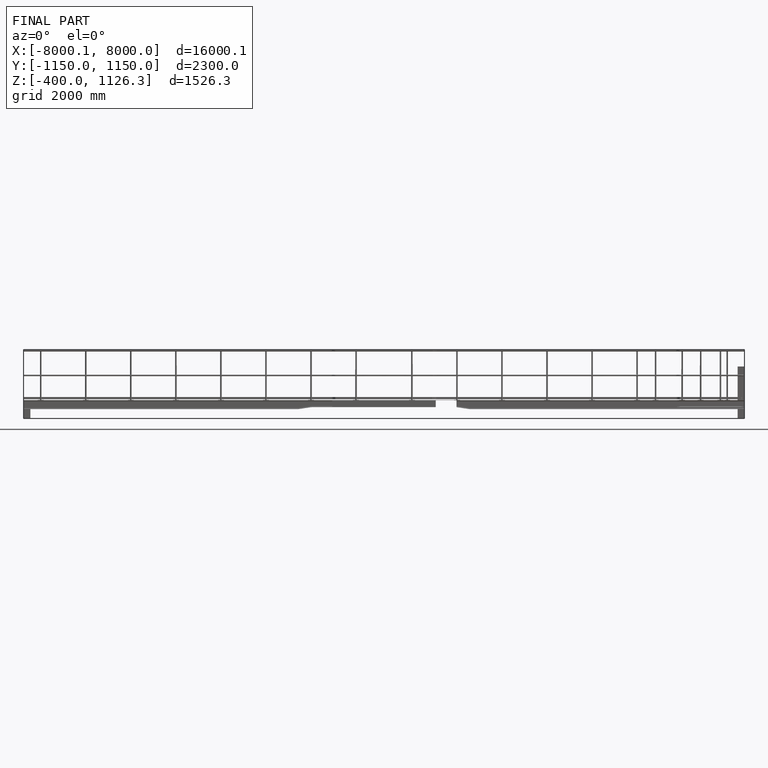
[diagram: finished part — front view with bounding-box wireframe]
